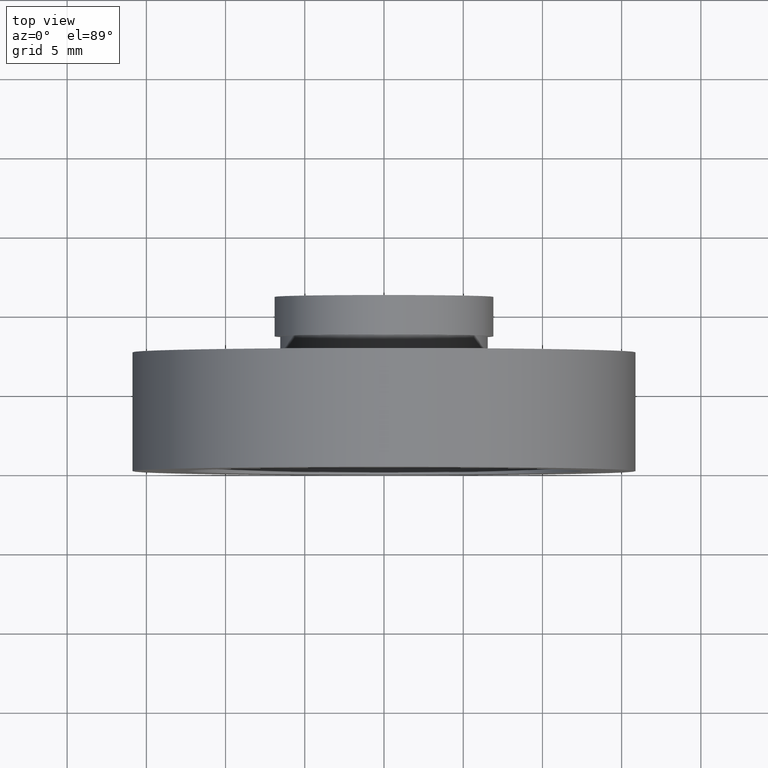
[diagram: clean part render]
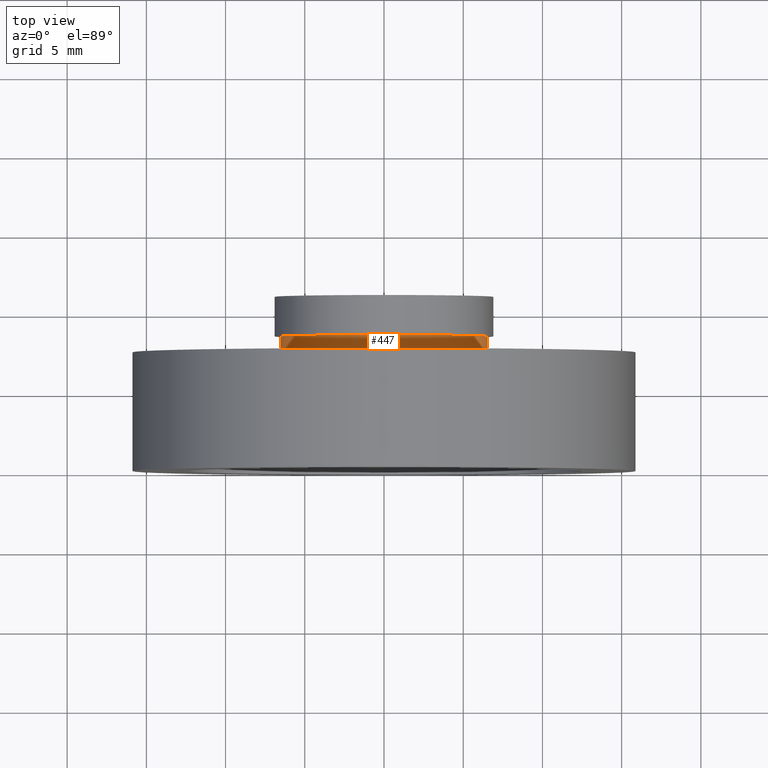
[diagram: same view with one face highlighted and labeled with its STEP entity id]
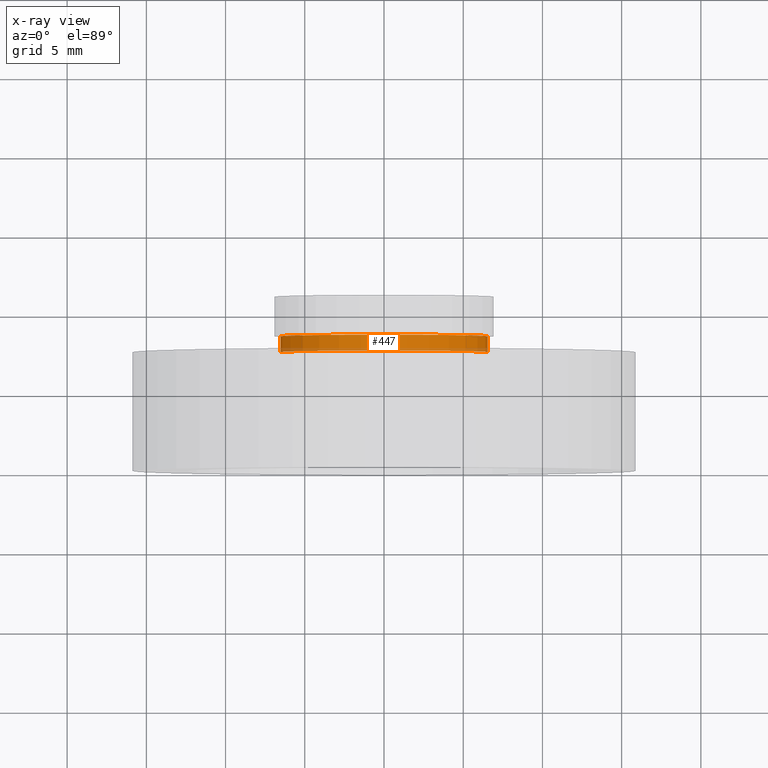
[diagram: x-ray of the same camera — body ghosted, the highlighted face saturated]
A machine part, top view. The second image highlights one B-rep face of the part: STEP entity #447.
The next image is the same camera in x-ray: the body ghosted, the highlighted face saturated — about 17% of this face is hidden behind the body in this view.
In plain terms, the highlighted cylindrical surface (partial cylindrical patch) has radius 6.55 mm, axis along (-0, 1, -0).
Its self-contained STEP definition (entity closure, byte-faithful):
#14 = EDGE_CURVE ( 'NONE', #286, #478, #57, .T. ) ;
#20 = AXIS2_PLACEMENT_3D ( 'NONE', #188, #521, #577 ) ;
#57 = CIRCLE ( 'NONE', #65, 6.549999999999998900 ) ;
#64 = AXIS2_PLACEMENT_3D ( 'NONE', #187, #238, #284 ) ;
#65 = AXIS2_PLACEMENT_3D ( 'NONE', #527, #288, #335 ) ;
#92 = VECTOR ( 'NONE', #337, 1000.000000000000000 ) ;
#93 = EDGE_LOOP ( 'NONE', ( #434, #562, #580, #579 ) ) ;
#126 = CARTESIAN_POINT ( 'NONE',  ( -6.549999999999998000, 8.500000000000000000, 0.0000000000000000000 ) ) ;
#128 = EDGE_CURVE ( 'NONE', #356, #478, #246, .T. ) ;
#187 = CARTESIAN_POINT ( 'NONE',  ( 0.0000000000000000000, 16.88601823708207700, 0.0000000000000000000 ) ) ;
#188 = CARTESIAN_POINT ( 'NONE',  ( 1.149455719078122500E-015, 7.500000000000000000, 0.0000000000000000000 ) ) ;
#238 = DIRECTION ( 'NONE',  ( -1.224646799147351000E-016, 1.000000000000000000, -0.0000000000000000000 ) ) ;
#244 = LINE ( 'NONE', #472, #598 ) ;
#246 = LINE ( 'NONE', #590, #92 ) ;
#267 = CARTESIAN_POINT ( 'NONE',  ( 6.550000000000000700, 7.500000000000000900, 8.021436534415164200E-016 ) ) ;
#284 = DIRECTION ( 'NONE',  ( -1.000000000000000000, 0.0000000000000000000, 0.0000000000000000000 ) ) ;
#286 = VERTEX_POINT ( 'NONE', #126 ) ;
#288 = DIRECTION ( 'NONE',  ( -1.224646799147351000E-016, 1.000000000000000000, -0.0000000000000000000 ) ) ;
#313 = CARTESIAN_POINT ( 'NONE',  ( -6.549999999999998900, 7.499999999999999100, 0.0000000000000000000 ) ) ;
#335 = DIRECTION ( 'NONE',  ( -1.000000000000000000, 0.0000000000000000000, 0.0000000000000000000 ) ) ;
#337 = DIRECTION ( 'NONE',  ( -1.224646799147351000E-016, 1.000000000000000000, -0.0000000000000000000 ) ) ;
#351 = CIRCLE ( 'NONE', #20, 6.549999999999999800 ) ;
#356 = VERTEX_POINT ( 'NONE', #267 ) ;
#407 = VERTEX_POINT ( 'NONE', #313 ) ;
#434 = ORIENTED_EDGE ( 'NONE', *, *, #505, .T. ) ;
#447 = ADVANCED_FACE ( 'NONE', ( #583 ), #613, .T. ) ;
#466 = DIRECTION ( 'NONE',  ( -1.224646799147351000E-016, 1.000000000000000000, -0.0000000000000000000 ) ) ;
#472 = CARTESIAN_POINT ( 'NONE',  ( -6.549999999999998900, 16.88601823708207700, 0.0000000000000000000 ) ) ;
#478 = VERTEX_POINT ( 'NONE', #515 ) ;
#492 = EDGE_CURVE ( 'NONE', #407, #286, #244, .T. ) ;
#505 = EDGE_CURVE ( 'NONE', #407, #356, #351, .T. ) ;
#515 = CARTESIAN_POINT ( 'NONE',  ( 6.549999999999999800, 8.500000000000000000, 8.021436534415162300E-016 ) ) ;
#521 = DIRECTION ( 'NONE',  ( -1.224646799147351000E-016, 1.000000000000000000, -0.0000000000000000000 ) ) ;
#527 = CARTESIAN_POINT ( 'NONE',  ( 1.026991039163387500E-015, 8.500000000000000000, 0.0000000000000000000 ) ) ;
#562 = ORIENTED_EDGE ( 'NONE', *, *, #128, .T. ) ;
#577 = DIRECTION ( 'NONE',  ( -1.000000000000000000, -1.324216393875425300E-016, 0.0000000000000000000 ) ) ;
#579 = ORIENTED_EDGE ( 'NONE', *, *, #492, .F. ) ;
#580 = ORIENTED_EDGE ( 'NONE', *, *, #14, .F. ) ;
#583 = FACE_OUTER_BOUND ( 'NONE', #93, .T. ) ;
#590 = CARTESIAN_POINT ( 'NONE',  ( 6.549999999999998900, 16.88601823708207700, 8.021436534415162300E-016 ) ) ;
#598 = VECTOR ( 'NONE', #466, 1000.000000000000000 ) ;
#613 = CYLINDRICAL_SURFACE ( 'NONE', #64, 6.549999999999998900 ) ;